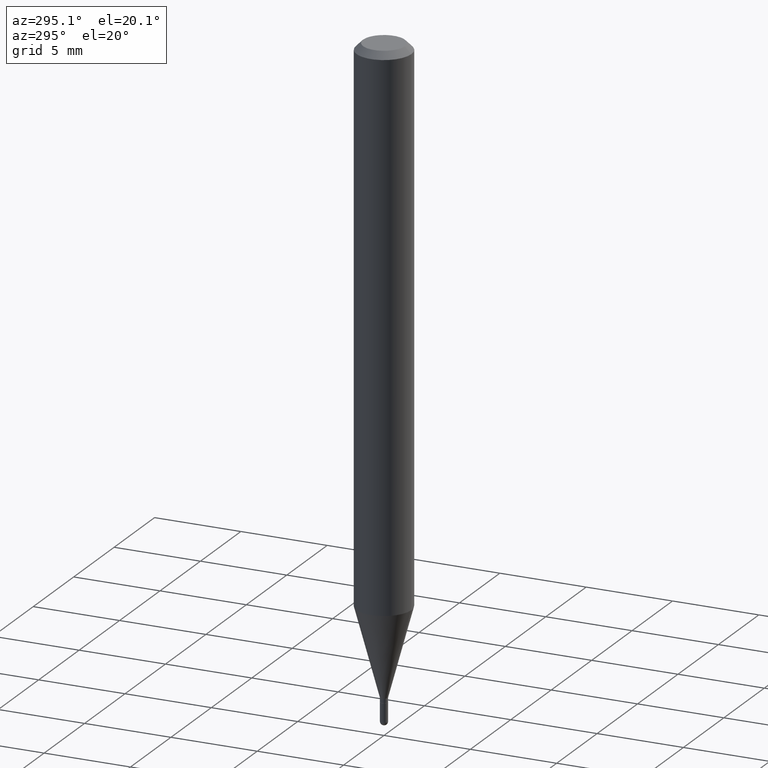
[diagram: clean part render]
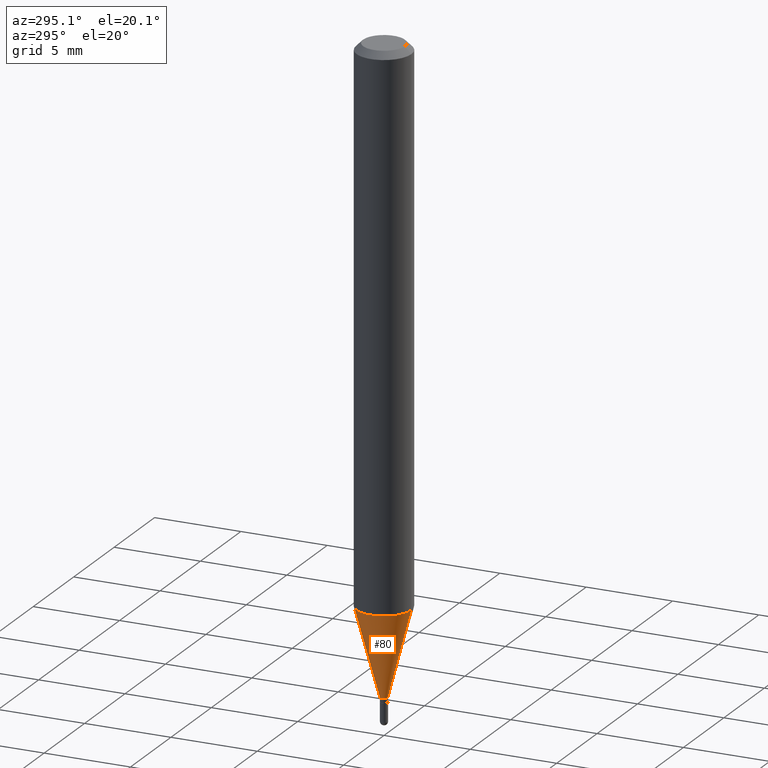
[diagram: same view with one face highlighted and labeled with its STEP entity id]
A machine part, auxiliary view. The second image highlights one B-rep face of the part: STEP entity #80.
In plain terms, the highlighted conical surface has half-angle 15 deg.
Its self-contained STEP definition (entity closure, byte-faithful):
#4 = VECTOR ( 'NONE', #246, 39.37007874015748854 ) ;
#20 = LINE ( 'NONE', #383, #4 ) ;
#38 = AXIS2_PLACEMENT_3D ( 'NONE', #231, #192, #234 ) ;
#80 = ADVANCED_FACE ( 'NONE', ( #183 ), #171, .T. ) ;
#84 = CARTESIAN_POINT ( 'NONE',  ( 3.519020035611559591E-29, -5.024255360672383389E-15, -1.439000000000000057 ) ) ;
#98 = CIRCLE ( 'NONE', #377, 0.008499999999999924283 ) ;
#99 = CARTESIAN_POINT ( 'NONE',  ( 4.440892098500927901E-16, 0.06249999999999569095, -1.237469256391281691 ) ) ;
#104 = VERTEX_POINT ( 'NONE', #99 ) ;
#109 = EDGE_LOOP ( 'NONE', ( #497, #178, #212, #384 ) ) ;
#114 = EDGE_CURVE ( 'NONE', #466, #488, #20, .T. ) ;
#121 = EDGE_CURVE ( 'NONE', #428, #104, #378, .T. ) ;
#136 = DIRECTION ( 'NONE',  ( -6.982962677686266711E-15, -1.000000000000000000, 0.000000000000000000 ) ) ;
#163 = CIRCLE ( 'NONE', #38, 0.06250000000000000000 ) ;
#167 = CARTESIAN_POINT ( 'NONE',  ( 6.039613253964316839E-17, 0.008499999999994900524, -1.439000000000000057 ) ) ;
#171 = CONICAL_SURFACE ( 'NONE', #236, 0.008499999999999924283, 0.2617993877991505181 ) ;
#178 = ORIENTED_EDGE ( 'NONE', *, *, #210, .T. ) ;
#183 = FACE_OUTER_BOUND ( 'NONE', #109, .T. ) ;
#192 = DIRECTION ( 'NONE',  ( -2.445462151224154742E-29, 3.491490869126048320E-15, 1.000000000000000000 ) ) ;
#210 = EDGE_CURVE ( 'NONE', #428, #466, #98, .T. ) ;
#212 = ORIENTED_EDGE ( 'NONE', *, *, #114, .T. ) ;
#231 = CARTESIAN_POINT ( 'NONE',  ( 3.026184229808377887E-29, -4.320612609514359217E-15, -1.237469256391281247 ) ) ;
#234 = DIRECTION ( 'NONE',  ( -6.982962677686265922E-15, -1.000000000000000000, 4.370956789862821150E-15 ) ) ;
#236 = AXIS2_PLACEMENT_3D ( 'NONE', #347, #376, #136 ) ;
#245 = DIRECTION ( 'NONE',  ( -6.982962677686266711E-15, -1.000000000000000000, 0.000000000000000000 ) ) ;
#246 = DIRECTION ( 'NONE',  ( -1.807323732225331717E-15, -0.2588190451025184080, 0.9659258262890689783 ) ) ;
#251 = EDGE_CURVE ( 'NONE', #104, #488, #163, .T. ) ;
#302 = DIRECTION ( 'NONE',  ( 1.839019923739601893E-15, 0.2588190451025252359, 0.9659258262890670910 ) ) ;
#313 = CARTESIAN_POINT ( 'NONE',  ( -4.364351673553615448E-16, -0.06250000000000432987, -1.237469256391281025 ) ) ;
#317 = DIRECTION ( 'NONE',  ( -2.445462151224154742E-29, 3.491490869126048320E-15, 1.000000000000000000 ) ) ;
#326 = VECTOR ( 'NONE', #302, 39.37007874015748854 ) ;
#347 = CARTESIAN_POINT ( 'NONE',  ( 3.519020035611559591E-29, -5.024255360672383389E-15, -1.439000000000000057 ) ) ;
#376 = DIRECTION ( 'NONE',  ( -2.445462151224154742E-29, 3.491490869126048320E-15, 1.000000000000000000 ) ) ;
#377 = AXIS2_PLACEMENT_3D ( 'NONE', #84, #317, #245 ) ;
#378 = LINE ( 'NONE', #167, #326 ) ;
#383 = CARTESIAN_POINT ( 'NONE',  ( -5.935518276029754545E-17, -0.008500000000004949777, -1.439000000000000057 ) ) ;
#384 = ORIENTED_EDGE ( 'NONE', *, *, #251, .F. ) ;
#428 = VERTEX_POINT ( 'NONE', #460 ) ;
#460 = CARTESIAN_POINT ( 'NONE',  ( 2.522426711948681826E-16, 0.008499999999994900524, -1.439000000000000057 ) ) ;
#466 = VERTEX_POINT ( 'NONE', #473 ) ;
#473 = CARTESIAN_POINT ( 'NONE',  ( -5.935518276029754545E-17, -0.008500000000004949777, -1.439000000000000057 ) ) ;
#488 = VERTEX_POINT ( 'NONE', #313 ) ;
#497 = ORIENTED_EDGE ( 'NONE', *, *, #121, .F. ) ;